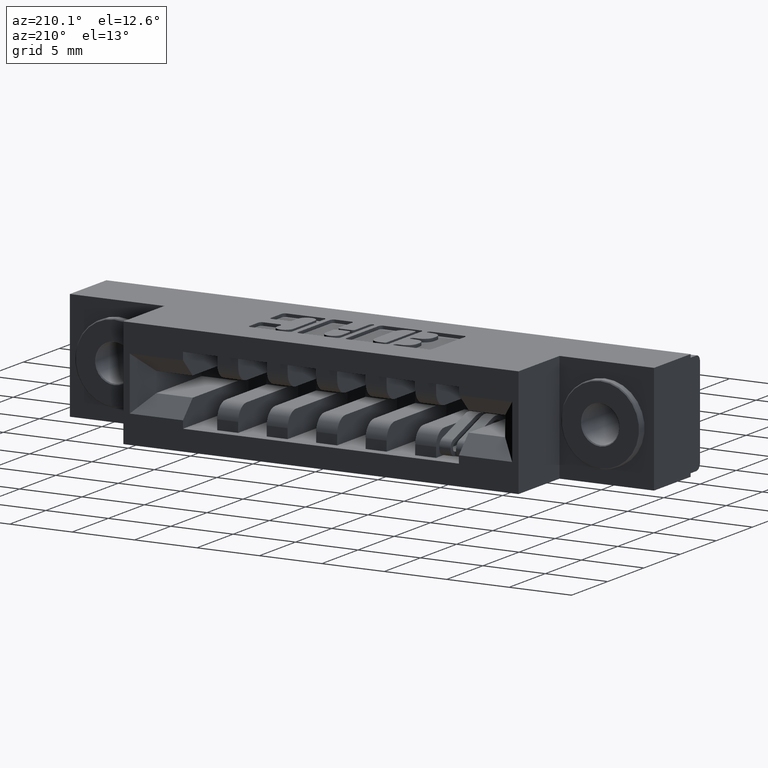
[diagram: clean part render]
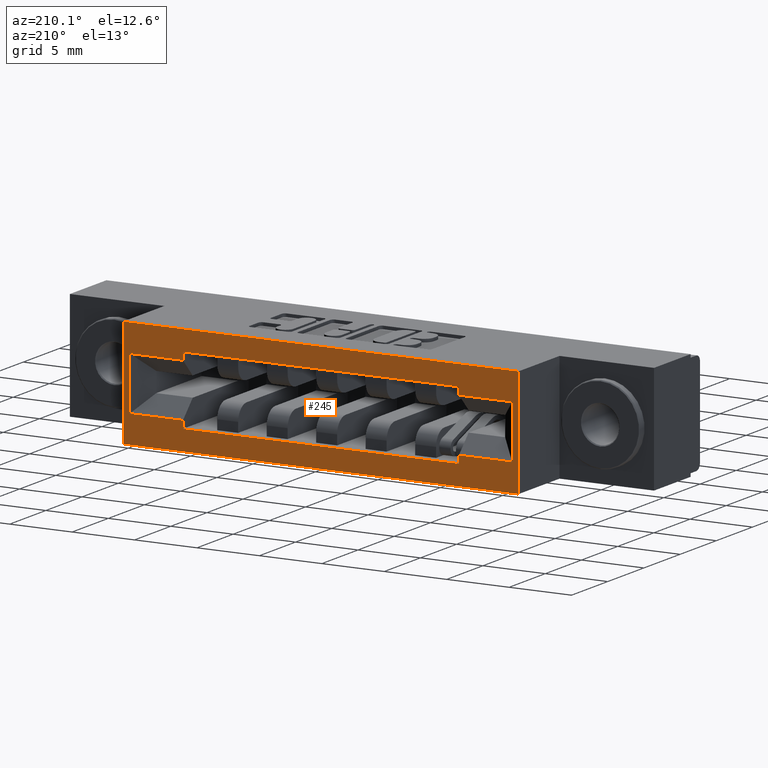
[diagram: same view with one face highlighted and labeled with its STEP entity id]
A machine part, auxiliary view. The second image highlights one B-rep face of the part: STEP entity #245.
In plain terms, the highlighted planar face has unit normal (0, -1, 0).
Its self-contained STEP definition (entity closure, byte-faithful):
#73 = EDGE_CURVE ( 'NONE', #827, #5451, #10252, .T. ) ;
#245 = ADVANCED_FACE ( 'NONE', ( #8706, #4488 ), #2329, .F. ) ;
#357 = VERTEX_POINT ( 'NONE', #6065 ) ;
#381 = DIRECTION ( 'NONE',  ( -7.964571410099899100E-016, 0.0000000000000000000, -1.000000000000000000 ) ) ;
#459 = DIRECTION ( 'NONE',  ( 0.0000000000000000000, -0.0000000000000000000, -1.000000000000000000 ) ) ;
#494 = VERTEX_POINT ( 'NONE', #1847 ) ;
#632 = LINE ( 'NONE', #10033, #6901 ) ;
#645 = LINE ( 'NONE', #5554, #8973 ) ;
#827 = VERTEX_POINT ( 'NONE', #6035 ) ;
#1118 = DIRECTION ( 'NONE',  ( 0.0000000000000000000, -1.000000000000000000, 0.0000000000000000000 ) ) ;
#1202 = DIRECTION ( 'NONE',  ( 1.000000000000000000, 0.0000000000000000000, 0.0000000000000000000 ) ) ;
#1400 = DIRECTION ( 'NONE',  ( -0.0000000000000000000, -0.0000000000000000000, 1.000000000000000000 ) ) ;
#1440 = CARTESIAN_POINT ( 'NONE',  ( 0.2979999999999995400, 0.4729999999999999800, -0.3430000000000000300 ) ) ;
#1590 = ORIENTED_EDGE ( 'NONE', *, *, #7734, .T. ) ;
#1622 = DIRECTION ( 'NONE',  ( -1.000000000000000000, -0.0000000000000000000, -0.0000000000000000000 ) ) ;
#1706 = CARTESIAN_POINT ( 'NONE',  ( 0.4860000000000003800, 0.4729999999999999800, -0.06400000000000012600 ) ) ;
#1782 = LINE ( 'NONE', #1706, #10121 ) ;
#1847 = CARTESIAN_POINT ( 'NONE',  ( 0.3179999999999996700, 0.4729999999999999800, -0.08750000000000016100 ) ) ;
#1874 = VECTOR ( 'NONE', #2994, 39.37007874015748100 ) ;
#1897 = CARTESIAN_POINT ( 'NONE',  ( 0.4860000000000003800, 0.4729999999999999800, -0.06400000000000012600 ) ) ;
#2097 = CARTESIAN_POINT ( 'NONE',  ( 0.2979999999999999900, 0.4729999999999999800, -3.560163420314651700E-016 ) ) ;
#2125 = DIRECTION ( 'NONE',  ( -1.194685711514983800E-015, 0.0000000000000000000, -1.000000000000000000 ) ) ;
#2129 = EDGE_LOOP ( 'NONE', ( #7338, #1590, #5964, #4561, #8773, #7470, #7708, #6330, #8430, #7100, #3016, #5706 ) ) ;
#2299 = LINE ( 'NONE', #8936, #6154 ) ;
#2319 = DIRECTION ( 'NONE',  ( 1.000000000000000000, 0.0000000000000000000, 0.0000000000000000000 ) ) ;
#2324 = CARTESIAN_POINT ( 'NONE',  ( 0.4860000000000003800, 0.4729999999999999800, -0.2790000000000001400 ) ) ;
#2329 = PLANE ( 'NONE',  #4333 ) ;
#2367 = ORIENTED_EDGE ( 'NONE', *, *, #3963, .F. ) ;
#2585 = EDGE_CURVE ( 'NONE', #7130, #7158, #2299, .T. ) ;
#2683 = DIRECTION ( 'NONE',  ( -1.000000000000000000, 0.0000000000000000000, 0.0000000000000000000 ) ) ;
#2933 = VECTOR ( 'NONE', #2683, 39.37007874015748100 ) ;
#2948 = EDGE_CURVE ( 'NONE', #827, #7940, #632, .T. ) ;
#2994 = DIRECTION ( 'NONE',  ( 0.0000000000000000000, 0.0000000000000000000, -1.000000000000000000 ) ) ;
#3016 = ORIENTED_EDGE ( 'NONE', *, *, #2585, .F. ) ;
#3140 = EDGE_CURVE ( 'NONE', #8791, #10400, #3467, .T. ) ;
#3244 = CARTESIAN_POINT ( 'NONE',  ( 1.524000000000000700, 0.4729999999999999800, -0.3430000000000000300 ) ) ;
#3411 = DIRECTION ( 'NONE',  ( 0.0000000000000000000, 0.0000000000000000000, 1.000000000000000000 ) ) ;
#3467 = LINE ( 'NONE', #5558, #2933 ) ;
#3597 = LINE ( 'NONE', #3244, #5513 ) ;
#3671 = VECTOR ( 'NONE', #9170, 39.37007874015748100 ) ;
#3738 = CARTESIAN_POINT ( 'NONE',  ( 0.5760000000000004000, 0.4729999999999999800, -0.06400000000000014000 ) ) ;
#3791 = ORIENTED_EDGE ( 'NONE', *, *, #7769, .T. ) ;
#3816 = CARTESIAN_POINT ( 'NONE',  ( 1.355999999999999700, 0.4729999999999999800, -0.06399999999999986300 ) ) ;
#3825 = VERTEX_POINT ( 'NONE', #2324 ) ;
#3840 = VECTOR ( 'NONE', #5305, 39.37007874015748100 ) ;
#3963 = EDGE_CURVE ( 'NONE', #10343, #4263, #10351, .T. ) ;
#4059 = VECTOR ( 'NONE', #2319, 39.37007874015748100 ) ;
#4126 = EDGE_CURVE ( 'NONE', #5716, #10400, #8329, .T. ) ;
#4201 = VECTOR ( 'NONE', #6090, 39.37007874015748100 ) ;
#4263 = VERTEX_POINT ( 'NONE', #1440 ) ;
#4265 = CARTESIAN_POINT ( 'NONE',  ( 1.543999999999999600, 0.4729999999999999800, -0.3430000000000000300 ) ) ;
#4325 = EDGE_LOOP ( 'NONE', ( #3791, #6461, #2367, #8789 ) ) ;
#4333 = AXIS2_PLACEMENT_3D ( 'NONE', #7406, #1118, #459 ) ;
#4398 = CARTESIAN_POINT ( 'NONE',  ( 0.0000000000000000000, 0.4729999999999999800, -0.2555000000000000600 ) ) ;
#4488 = FACE_OUTER_BOUND ( 'NONE', #4325, .T. ) ;
#4561 = ORIENTED_EDGE ( 'NONE', *, *, #7228, .F. ) ;
#4757 = CARTESIAN_POINT ( 'NONE',  ( 1.355999999999999700, 0.4729999999999999800, -0.06399999999999986300 ) ) ;
#4768 = CARTESIAN_POINT ( 'NONE',  ( 0.0000000000000000000, 0.4729999999999999800, 0.0000000000000000000 ) ) ;
#5082 = VECTOR ( 'NONE', #381, 39.37007874015748100 ) ;
#5305 = DIRECTION ( 'NONE',  ( 0.0000000000000000000, 0.0000000000000000000, -1.000000000000000000 ) ) ;
#5423 = VERTEX_POINT ( 'NONE', #7439 ) ;
#5445 = EDGE_CURVE ( 'NONE', #494, #357, #7414, .T. ) ;
#5448 = CARTESIAN_POINT ( 'NONE',  ( 0.3179999999999996700, 0.4729999999999999800, -0.3430000000000000300 ) ) ;
#5451 = VERTEX_POINT ( 'NONE', #7918 ) ;
#5485 = EDGE_CURVE ( 'NONE', #7130, #494, #645, .T. ) ;
#5513 = VECTOR ( 'NONE', #3411, 39.37007874015748100 ) ;
#5554 = CARTESIAN_POINT ( 'NONE',  ( 0.0000000000000000000, 0.4729999999999999800, -0.08750000000000016100 ) ) ;
#5558 = CARTESIAN_POINT ( 'NONE',  ( 0.0000000000000000000, 0.4729999999999999800, -0.08750000000000016100 ) ) ;
#5585 = LINE ( 'NONE', #4398, #3671 ) ;
#5654 = CARTESIAN_POINT ( 'NONE',  ( 1.355999999999999700, 0.4729999999999999800, -0.06399999999999986300 ) ) ;
#5663 = DIRECTION ( 'NONE',  ( -1.000000000000000000, 0.0000000000000000000, 0.0000000000000000000 ) ) ;
#5706 = ORIENTED_EDGE ( 'NONE', *, *, #5485, .T. ) ;
#5716 = VERTEX_POINT ( 'NONE', #3816 ) ;
#5835 = EDGE_CURVE ( 'NONE', #7940, #8791, #3597, .T. ) ;
#5964 = ORIENTED_EDGE ( 'NONE', *, *, #6028, .F. ) ;
#6028 = EDGE_CURVE ( 'NONE', #3825, #5423, #1782, .T. ) ;
#6035 = CARTESIAN_POINT ( 'NONE',  ( 1.355999999999999700, 0.4729999999999999800, -0.2555000000000000600 ) ) ;
#6065 = CARTESIAN_POINT ( 'NONE',  ( 0.3179999999999996700, 0.4729999999999999800, -0.2555000000000000600 ) ) ;
#6090 = DIRECTION ( 'NONE',  ( -1.000000000000000000, 0.0000000000000000000, 0.0000000000000000000 ) ) ;
#6154 = VECTOR ( 'NONE', #10431, 39.37007874015748100 ) ;
#6330 = ORIENTED_EDGE ( 'NONE', *, *, #3140, .T. ) ;
#6426 = EDGE_CURVE ( 'NONE', #7158, #5716, #10362, .T. ) ;
#6461 = ORIENTED_EDGE ( 'NONE', *, *, #10098, .T. ) ;
#6869 = LINE ( 'NONE', #10041, #4201 ) ;
#6875 = CARTESIAN_POINT ( 'NONE',  ( 1.355999999999999700, 0.4729999999999999800, -0.08750000000000016100 ) ) ;
#6901 = VECTOR ( 'NONE', #1202, 39.37007874015748100 ) ;
#7100 = ORIENTED_EDGE ( 'NONE', *, *, #6426, .F. ) ;
#7130 = VERTEX_POINT ( 'NONE', #8335 ) ;
#7158 = VERTEX_POINT ( 'NONE', #1897 ) ;
#7219 = LINE ( 'NONE', #7653, #5082 ) ;
#7228 = EDGE_CURVE ( 'NONE', #5451, #3825, #6869, .T. ) ;
#7325 = CARTESIAN_POINT ( 'NONE',  ( 0.0000000000000000000, 0.4729999999999999800, -0.3430000000000000300 ) ) ;
#7338 = ORIENTED_EDGE ( 'NONE', *, *, #5445, .T. ) ;
#7406 = CARTESIAN_POINT ( 'NONE',  ( 0.0000000000000000000, 0.4729999999999999800, -0.3430000000000000300 ) ) ;
#7414 = LINE ( 'NONE', #5448, #10005 ) ;
#7439 = CARTESIAN_POINT ( 'NONE',  ( 0.4860000000000003800, 0.4729999999999999800, -0.2555000000000000600 ) ) ;
#7442 = EDGE_CURVE ( 'NONE', #10343, #8278, #8320, .T. ) ;
#7470 = ORIENTED_EDGE ( 'NONE', *, *, #2948, .T. ) ;
#7653 = CARTESIAN_POINT ( 'NONE',  ( 1.544000000000000300, 0.4729999999999999800, -1.229729825719424600E-015 ) ) ;
#7708 = ORIENTED_EDGE ( 'NONE', *, *, #5835, .T. ) ;
#7734 = EDGE_CURVE ( 'NONE', #357, #5423, #5585, .T. ) ;
#7769 = EDGE_CURVE ( 'NONE', #8278, #9666, #7219, .T. ) ;
#7809 = LINE ( 'NONE', #7325, #9675 ) ;
#7918 = CARTESIAN_POINT ( 'NONE',  ( 1.355999999999999700, 0.4729999999999999800, -0.2790000000000001400 ) ) ;
#7940 = VERTEX_POINT ( 'NONE', #9418 ) ;
#8013 = DIRECTION ( 'NONE',  ( 0.0000000000000000000, 0.0000000000000000000, -1.000000000000000000 ) ) ;
#8229 = VECTOR ( 'NONE', #9168, 39.37007874015748100 ) ;
#8278 = VERTEX_POINT ( 'NONE', #10413 ) ;
#8320 = LINE ( 'NONE', #4768, #4059 ) ;
#8329 = LINE ( 'NONE', #4757, #1874 ) ;
#8335 = CARTESIAN_POINT ( 'NONE',  ( 0.4860000000000003800, 0.4729999999999999800, -0.08750000000000016100 ) ) ;
#8375 = CARTESIAN_POINT ( 'NONE',  ( 0.2979999999999997100, 0.4729999999999999800, 0.0000000000000000000 ) ) ;
#8430 = ORIENTED_EDGE ( 'NONE', *, *, #4126, .F. ) ;
#8706 = FACE_BOUND ( 'NONE', #2129, .T. ) ;
#8773 = ORIENTED_EDGE ( 'NONE', *, *, #73, .F. ) ;
#8789 = ORIENTED_EDGE ( 'NONE', *, *, #7442, .T. ) ;
#8791 = VERTEX_POINT ( 'NONE', #10275 ) ;
#8936 = CARTESIAN_POINT ( 'NONE',  ( 0.4860000000000003800, 0.4729999999999999800, -0.06400000000000012600 ) ) ;
#8973 = VECTOR ( 'NONE', #5663, 39.37007874015748100 ) ;
#9168 = DIRECTION ( 'NONE',  ( 1.000000000000000000, -0.0000000000000000000, -1.897116662266849500E-016 ) ) ;
#9170 = DIRECTION ( 'NONE',  ( 1.000000000000000000, 0.0000000000000000000, 0.0000000000000000000 ) ) ;
#9418 = CARTESIAN_POINT ( 'NONE',  ( 1.524000000000000700, 0.4729999999999999800, -0.2555000000000000600 ) ) ;
#9666 = VERTEX_POINT ( 'NONE', #4265 ) ;
#9675 = VECTOR ( 'NONE', #1622, 39.37007874015748100 ) ;
#9848 = VECTOR ( 'NONE', #2125, 39.37007874015748100 ) ;
#10005 = VECTOR ( 'NONE', #8013, 39.37007874015748100 ) ;
#10033 = CARTESIAN_POINT ( 'NONE',  ( 0.0000000000000000000, 0.4729999999999999800, -0.2555000000000000600 ) ) ;
#10041 = CARTESIAN_POINT ( 'NONE',  ( 0.5760000000000004000, 0.4729999999999999800, -0.2790000000000001400 ) ) ;
#10098 = EDGE_CURVE ( 'NONE', #9666, #4263, #7809, .T. ) ;
#10121 = VECTOR ( 'NONE', #1400, 39.37007874015748100 ) ;
#10252 = LINE ( 'NONE', #5654, #3840 ) ;
#10275 = CARTESIAN_POINT ( 'NONE',  ( 1.524000000000000700, 0.4729999999999999800, -0.08750000000000016100 ) ) ;
#10343 = VERTEX_POINT ( 'NONE', #8375 ) ;
#10351 = LINE ( 'NONE', #2097, #9848 ) ;
#10362 = LINE ( 'NONE', #3738, #8229 ) ;
#10400 = VERTEX_POINT ( 'NONE', #6875 ) ;
#10413 = CARTESIAN_POINT ( 'NONE',  ( 1.544000000000000300, 0.4729999999999999800, 0.0000000000000000000 ) ) ;
#10431 = DIRECTION ( 'NONE',  ( -0.0000000000000000000, -0.0000000000000000000, 1.000000000000000000 ) ) ;